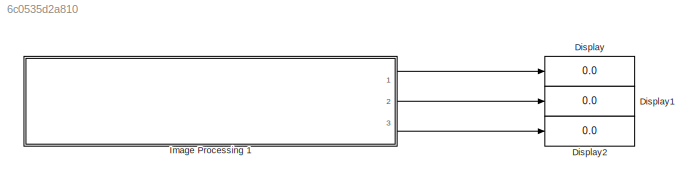
MODEL slx_6c0535d2a810
KIND model
CONFIG AbsTol = auto
CONFIG EnableMultiTasking = on
CONFIG FixedStep = auto
CONFIG MaxStep = auto
CONFIG MinStep = auto
CONFIG RelTol = 1e-3
CONFIG SampleTimeConstraint = Unconstrained
CONFIG Solver = FixedStepAuto
CONFIG SolverName = FixedStepAuto
CONFIG StartTime = 0.0
CONFIG StopTime = inf
BLOCK [Display] Display
  Decimation = 1
  Ports = [1]
BLOCK [Display] Display1
  Decimation = 1
  Ports = [1]
BLOCK [Display] Display2
  Decimation = 1
  Ports = [1]
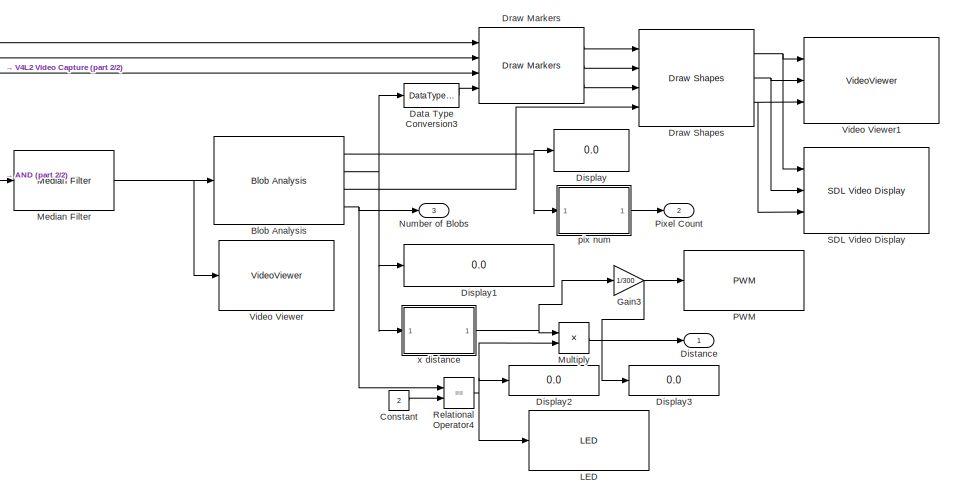
[diagram: Image Processing 1 - part 1/2, right side, full height]
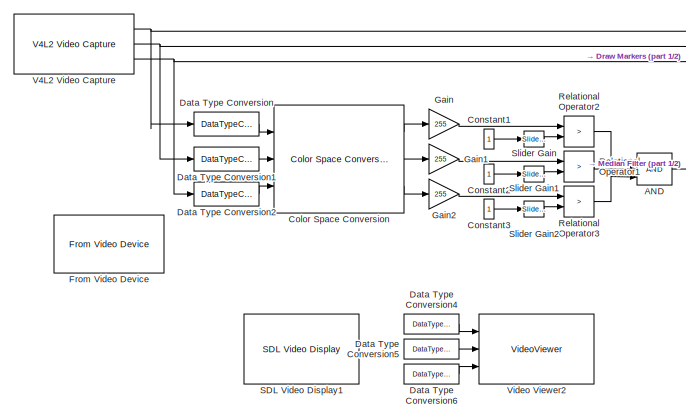
[diagram: Image Processing 1 - part 2/2, left side, full height]
BLOCK [SubSystem] Image Processing 1
  Ports = [0, 3]
  RequestExecContextInheritance = off
BLOCK [Logic] Image Processing 1/AND
  AllPortsSameDT = off
  IconShape = distinctive
  Inputs = 3
  OutDataTypeStr = boolean
  Ports = [3, 1]
BLOCK [Reference] Image Processing 1/Blob Analysis  REF=visionstatistics/Blob Analysis
  Ports = [1, 4]
  SourceBlock = visionstatistics/Blob Analysis
  SourceProductBaseCode = VP
  SourceProductName = Computer Vision System Toolbox
  SourceType = Blob Analysis
  Tag = vipblks_row_conv
BLOCK [Reference] Image Processing 1/Color Space Conversion  REF=visionconversions/Color Space
 Conversion
  Ports = [3, 3]
  SourceBlock = visionconversions/Color Space\n Conversion
  SourceProductBaseCode = VP
  SourceProductName = Computer Vision System Toolbox
  SourceType = Color Space Conversion
BLOCK [Constant] Image Processing 1/Constant
  Value = 2
BLOCK [Constant] Image Processing 1/Constant1
  OutDataTypeStr = uint8
BLOCK [Constant] Image Processing 1/Constant2
  OutDataTypeStr = uint8
BLOCK [Constant] Image Processing 1/Constant3
  OutDataTypeStr = uint8
BLOCK [DataTypeConversion] Image Processing 1/Data Type Conversion
  LockScale = on
  OutDataTypeStr = double
  RndMeth = Simplest
  SaturateOnIntegerOverflow = off
BLOCK [DataTypeConversion] Image Processing 1/Data Type Conversion1
  LockScale = on
  OutDataTypeStr = double
  RndMeth = Simplest
  SaturateOnIntegerOverflow = off
BLOCK [DataTypeConversion] Image Processing 1/Data Type Conversion2
  LockScale = on
  OutDataTypeStr = double
  RndMeth = Simplest
  SaturateOnIntegerOverflow = off
BLOCK [DataTypeConversion] Image Processing 1/Data Type Conversion3
  Commented = on
  OutDataTypeStr = uint16
  RndMeth = Floor
  SaturateOnIntegerOverflow = off
BLOCK [DataTypeConversion] Image Processing 1/Data Type Conversion4
  Commented = on
  OutDataTypeStr = uint8
  RndMeth = Floor
  SaturateOnIntegerOverflow = off
BLOCK [DataTypeConversion] Image Processing 1/Data Type Conversion5
  Commented = on
  OutDataTypeStr = uint8
  RndMeth = Floor
  SaturateOnIntegerOverflow = off
BLOCK [DataTypeConversion] Image Processing 1/Data Type Conversion6
  Commented = on
  OutDataTypeStr = uint8
  RndMeth = Floor
  SaturateOnIntegerOverflow = off
BLOCK [Display] Image Processing 1/Display
  Decimation = 1
  Ports = [1]
BLOCK [Display] Image Processing 1/Display1
  Decimation = 1
  Ports = [1]
BLOCK [Display] Image Processing 1/Display2
  Decimation = 1
  Ports = [1]
BLOCK [Display] Image Processing 1/Display3
  Decimation = 1
  Ports = [1]
BLOCK [Outport] Image Processing 1/Distance
  IconDisplay = Port number
BLOCK [Reference] Image Processing 1/Draw Markers  REF=visiontextngfix/Draw Markers
  Commented = on
  Ports = [4, 3]
  SourceBlock = visiontextngfix/Draw Markers
  SourceProductBaseCode = VP
  SourceProductName = Computer Vision System Toolbox
  SourceType = Draw Markers
BLOCK [Reference] Image Processing 1/Draw Shapes  REF=visiontextngfix/Draw Shapes
  Commented = on
  Ports = [4, 3]
  SourceBlock = visiontextngfix/Draw Shapes
  SourceProductBaseCode = VP
  SourceProductName = Computer Vision System Toolbox
  SourceType = Draw Shapes
BLOCK [Reference] Image Processing 1/From Video Device  REF=imaqlib/From Video Device
  Commented = on
  Ports = [0, 3]
  SourceBlock = imaqlib/From Video Device
  SourceProductBaseCode = IA
  SourceProductName = Image Acquisition Toolbox
  SourceType = From Video Device
  UserDataPersistent = on
BLOCK [Gain] Image Processing 1/Gain
  Gain = 255
  OutDataTypeStr = Inherit: Inherit via internal rule
  ParamDataTypeStr = Inherit: Inherit via internal rule
  SaturateOnIntegerOverflow = off
BLOCK [Gain] Image Processing 1/Gain1
  Gain = 255
  OutDataTypeStr = Inherit: Inherit via internal rule
  ParamDataTypeStr = Inherit: Inherit via internal rule
  SaturateOnIntegerOverflow = off
BLOCK [Gain] Image Processing 1/Gain2
  Gain = 255
  OutDataTypeStr = Inherit: Inherit via internal rule
  ParamDataTypeStr = Inherit: Inherit via internal rule
  SaturateOnIntegerOverflow = off
BLOCK [Gain] Image Processing 1/Gain3
  Gain = 1/300
  OutDataTypeStr = Inherit: Inherit via internal rule
  ParamDataTypeStr = Inherit: Inherit via internal rule
  SaturateOnIntegerOverflow = off
BLOCK [Reference] Image Processing 1/LED  REF=embdlinuxlib/LED
  Ports = [1]
  SourceBlock = embdlinuxlib/LED
  SourceProductBaseCode = RASPPI
  SourceProductName = Simulink Support Package for Raspberry Pi Hardware
  SourceType = LED Write
BLOCK [Reference] Image Processing 1/Median Filter  REF=visionanalysis/Median Filter
  Ports = [1, 1]
  SourceBlock = visionanalysis/Median Filter
  SourceProductBaseCode = VP
  SourceProductName = Computer Vision System Toolbox
  SourceType = Median Filter
BLOCK [Product] Image Processing 1/Multiply
  InputSameDT = off
  LockScale = on
  OutDataTypeStr = double
  Ports = [2, 1]
  RndMeth = Floor
  SaturateOnIntegerOverflow = off
BLOCK [Outport] Image Processing 1/Number of Blobs
  IconDisplay = Port number
  Port = 3
BLOCK [Reference] Image Processing 1/PWM  REF=raspberrypilib/PWM
  Ports = [1]
  SourceBlock = raspberrypilib/PWM
  SourceProductBaseCode = RASPPI
  SourceProductName = Simulink Support Package for Raspberry Pi Hardware
  SourceType = raspi.internal.PWMBlock
BLOCK [Outport] Image Processing 1/Pixel Count
  IconDisplay = Port number
  Port = 2
BLOCK [RelationalOperator] Image Processing 1/Relational Operator1
  InputSameDT = off
  Operator = >
  OutDataTypeStr = boolean
  Ports = [2, 1]
  RndMeth = Simplest
BLOCK [RelationalOperator] Image Processing 1/Relational Operator2
  InputSameDT = off
  Operator = >
  OutDataTypeStr = boolean
  Ports = [2, 1]
  RndMeth = Simplest
BLOCK [RelationalOperator] Image Processing 1/Relational Operator3
  InputSameDT = off
  Operator = >
  OutDataTypeStr = boolean
  Ports = [2, 1]
  RndMeth = Simplest
BLOCK [RelationalOperator] Image Processing 1/Relational Operator4
  InputSameDT = off
  Operator = ==
  OutDataTypeStr = boolean
  Ports = [2, 1]
  RndMeth = Simplest
BLOCK [Reference] Image Processing 1/SDL Video Display  REF=embdlinuxlib/SDL Video Display
  Commented = on
  Ports = [3]
  SourceBlock = embdlinuxlib/SDL Video Display
  SourceProductBaseCode = RASPPI
  SourceProductName = Simulink Support Package for Raspberry Pi Hardware
  SourceType = SDL Video Display
BLOCK [Reference] Image Processing 1/SDL Video Display1  REF=embdlinuxlib/SDL Video Display
  Commented = on
  Ports = [3]
  SourceBlock = embdlinuxlib/SDL Video Display
  SourceProductBaseCode = RASPPI
  SourceProductName = Simulink Support Package for Raspberry Pi Hardware
  SourceType = SDL Video Display
BLOCK [Reference] Image Processing 1/Slider Gain  REF=simulink/Math
Operations/Slider
Gain
  Ports = [1, 1]
  SourceBlock = simulink/Math\nOperations/Slider\nGain
  SourceProductBaseCode = SL
  SourceProductName = Simulink
  SourceType = Slider Gain
BLOCK [Reference] Image Processing 1/Slider Gain1  REF=simulink/Math
Operations/Slider
Gain
  Ports = [1, 1]
  SourceBlock = simulink/Math\nOperations/Slider\nGain
  SourceProductBaseCode = SL
  SourceProductName = Simulink
  SourceType = Slider Gain
BLOCK [Reference] Image Processing 1/Slider Gain2  REF=simulink/Math
Operations/Slider
Gain
  Ports = [1, 1]
  SourceBlock = simulink/Math\nOperations/Slider\nGain
  SourceProductBaseCode = SL
  SourceProductName = Simulink
  SourceType = Slider Gain
BLOCK [Reference] Image Processing 1/V4L2 Video Capture  REF=embdlinuxlib/V4L2 Video Capture
  Ports = [0, 3]
  SourceBlock = embdlinuxlib/V4L2 Video Capture
  SourceProductBaseCode = RASPPI
  SourceProductName = Simulink Support Package for Raspberry Pi Hardware
  SourceType = V4L2 Video Capture
BLOCK [VideoViewer] Image Processing 1/Video Viewer
  Commented = on
  FigPos = [561 735 732 627]
  Ports = [1]
  ScopeSpecificationString = vipscopes.VideoViewerScopeCfg('CurrentConfiguration', extmgr.ConfigurationSet(extmgr.Configuration('Core','General UI',true),extmgr.Configuration('Core','Source UI',true),extmgr.Configuration('Sources','WiredSimulink',true),extmgr.Configuration('Visuals','Video',true),extmgr.Configuration('Tools','Image Navigation Tools',true),extmgr.Configuration('Tools','Image Tool',true),extmgr.Configuration('T...<+74ch>
BLOCK [VideoViewer] Image Processing 1/Video Viewer1
  Commented = on
  FigPos = [-9 748 732 627]
  Ports = [3]
  ScopeSpecificationString = vipscopes.VideoViewerScopeCfg('CurrentConfiguration', extmgr.ConfigurationSet(extmgr.Configuration('Core','General UI',true),extmgr.Configuration('Core','Source UI',true),extmgr.Configuration('Sources','WiredSimulink',true),extmgr.Configuration('Visuals','Video',true),extmgr.Configuration('Tools','Image Navigation Tools',true),extmgr.Configuration('Tools','Image Tool',true),extmgr.Configuration('T...<+99ch>
  imagePorts = separate color signals
BLOCK [VideoViewer] Image Processing 1/Video Viewer2
  Commented = on
  FigPos = [271 744 732 627]
  Ports = [3]
  ScopeSpecificationString = vipscopes.VideoViewerScopeCfg('CurrentConfiguration', extmgr.ConfigurationSet(extmgr.Configuration('Core','General UI',true),extmgr.Configuration('Core','Source UI',true),extmgr.Configuration('Sources','WiredSimulink',true),extmgr.Configuration('Visuals','Video',true),extmgr.Configuration('Tools','Image Navigation Tools',true),extmgr.Configuration('Tools','Image Tool',true),extmgr.Configuration('T...<+74ch>
  imagePorts = separate color signals
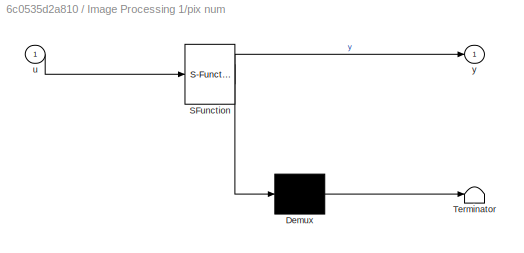
BLOCK [SubSystem] Image Processing 1/pix num
  ErrorFcn = Stateflow.Translate.translate
  PermitHierarchicalResolution = ExplicitOnly
  Ports = [1, 1]
  RequestExecContextInheritance = off
  SFBlockType = MATLAB Function
  TreatAsAtomicUnit = on
BLOCK [Demux] Image Processing 1/pix num/ Demux 
  Outputs = 1
  Ports = [1, 1]
BLOCK [S-Function] Image Processing 1/pix num/ SFunction 
  EnableBusSupport = on
  FunctionName = sf_sfun
  PortCounts = [1 2]
  Ports = [1, 2]
  SFcnIsStateOwnerBlock = off
  SFunctionDeploymentMode = off
  Tag = Stateflow S-Function vidcap_LED 1
BLOCK [Terminator] Image Processing 1/pix num/ Terminator 
BLOCK [Inport] Image Processing 1/pix num/u
  IconDisplay = Port number
BLOCK [Outport] Image Processing 1/pix num/y
  IconDisplay = Port number
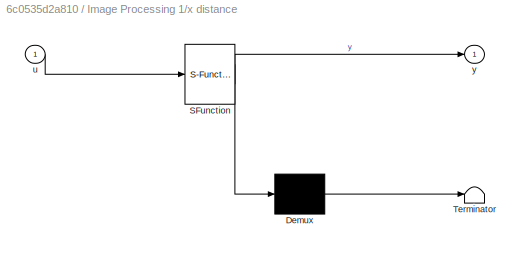
BLOCK [SubSystem] Image Processing 1/x distance
  ErrorFcn = Stateflow.Translate.translate
  PermitHierarchicalResolution = ExplicitOnly
  Ports = [1, 1]
  RequestExecContextInheritance = off
  SFBlockType = MATLAB Function
  TreatAsAtomicUnit = on
BLOCK [Demux] Image Processing 1/x distance/ Demux 
  Outputs = 1
  Ports = [1, 1]
BLOCK [S-Function] Image Processing 1/x distance/ SFunction 
  EnableBusSupport = on
  FunctionName = sf_sfun
  PortCounts = [1 2]
  Ports = [1, 2]
  SFcnIsStateOwnerBlock = off
  SFunctionDeploymentMode = off
  Tag = Stateflow S-Function vidcap_LED 2
BLOCK [Terminator] Image Processing 1/x distance/ Terminator 
BLOCK [Inport] Image Processing 1/x distance/u
  IconDisplay = Port number
BLOCK [Outport] Image Processing 1/x distance/y
  IconDisplay = Port number
LINE Image Processing 1/AND:1 -> Image Processing 1/Median Filter:1
NET Image Processing 1/Blob Analysis:1 -> Image Processing 1/Display:1, Image Processing 1/pix num:1
NET Image Processing 1/Blob Analysis:2 -> Image Processing 1/Data Type Conversion3:1, Image Processing 1/Display1:1, Image Processing 1/x distance:1
LINE Image Processing 1/Blob Analysis:3 -> Image Processing 1/Draw Shapes:4
NET Image Processing 1/Blob Analysis:4 -> Image Processing 1/Number of Blobs:1, Image Processing 1/Relational Operator4:1
LINE Image Processing 1/Color Space Conversion:1 -> Image Processing 1/Gain:1
LINE Image Processing 1/Color Space Conversion:2 -> Image Processing 1/Gain1:1
LINE Image Processing 1/Color Space Conversion:3 -> Image Processing 1/Gain2:1
LINE Image Processing 1/Constant1:1 -> Image Processing 1/Slider Gain:1
LINE Image Processing 1/Constant2:1 -> Image Processing 1/Slider Gain1:1
LINE Image Processing 1/Constant3:1 -> Image Processing 1/Slider Gain2:1
LINE Image Processing 1/Constant:1 -> Image Processing 1/Relational Operator4:2
LINE Image Processing 1/Data Type Conversion1:1 -> Image Processing 1/Color Space Conversion:2
LINE Image Processing 1/Data Type Conversion2:1 -> Image Processing 1/Color Space Conversion:3
LINE Image Processing 1/Data Type Conversion3:1 -> Image Processing 1/Draw Markers:4
LINE Image Processing 1/Data Type Conversion4:1 -> Image Processing 1/Video Viewer2:1
LINE Image Processing 1/Data Type Conversion5:1 -> Image Processing 1/Video Viewer2:2
LINE Image Processing 1/Data Type Conversion6:1 -> Image Processing 1/Video Viewer2:3
LINE Image Processing 1/Data Type Conversion:1 -> Image Processing 1/Color Space Conversion:1
LINE Image Processing 1/Draw Markers:1 -> Image Processing 1/Draw Shapes:1
LINE Image Processing 1/Draw Markers:2 -> Image Processing 1/Draw Shapes:2
LINE Image Processing 1/Draw Markers:3 -> Image Processing 1/Draw Shapes:3
NET Image Processing 1/Draw Shapes:1 -> Image Processing 1/SDL Video Display:1, Image Processing 1/Video Viewer1:1
NET Image Processing 1/Draw Shapes:2 -> Image Processing 1/SDL Video Display:2, Image Processing 1/Video Viewer1:2
NET Image Processing 1/Draw Shapes:3 -> Image Processing 1/SDL Video Display:3, Image Processing 1/Video Viewer1:3
LINE Image Processing 1/Gain1:1 -> Image Processing 1/Relational Operator1:1
LINE Image Processing 1/Gain2:1 -> Image Processing 1/Relational Operator3:1
NET Image Processing 1/Gain3:1 -> Image Processing 1/Display3:1, Image Processing 1/PWM:1
LINE Image Processing 1/Gain:1 -> Image Processing 1/Relational Operator2:1
NET Image Processing 1/Median Filter:1 -> Image Processing 1/Blob Analysis:1, Image Processing 1/Video Viewer:1
LINE Image Processing 1/Multiply:1 -> Image Processing 1/Distance:1
LINE Image Processing 1/Relational Operator1:1 -> Image Processing 1/AND:2
LINE Image Processing 1/Relational Operator2:1 -> Image Processing 1/AND:1
LINE Image Processing 1/Relational Operator3:1 -> Image Processing 1/AND:3
NET Image Processing 1/Relational Operator4:1 -> Image Processing 1/Display2:1, Image Processing 1/LED:1, Image Processing 1/Multiply:2
LINE Image Processing 1/Slider Gain1:1 -> Image Processing 1/Relational Operator1:2
LINE Image Processing 1/Slider Gain2:1 -> Image Processing 1/Relational Operator3:2
LINE Image Processing 1/Slider Gain:1 -> Image Processing 1/Relational Operator2:2
NET Image Processing 1/V4L2 Video Capture:1 -> Image Processing 1/Data Type Conversion:1, Image Processing 1/Draw Markers:1
NET Image Processing 1/V4L2 Video Capture:2 -> Image Processing 1/Data Type Conversion1:1, Image Processing 1/Draw Markers:2
NET Image Processing 1/V4L2 Video Capture:3 -> Image Processing 1/Data Type Conversion2:1, Image Processing 1/Draw Markers:3
LINE Image Processing 1/pix num:1 -> Image Processing 1/Pixel Count:1
NET Image Processing 1/x distance:1 -> Image Processing 1/Gain3:1, Image Processing 1/Multiply:1
LINE Image Processing 1:1 -> Display:1
LINE Image Processing 1:2 -> Display1:1
LINE Image Processing 1:3 -> Display2:1
note: NET lines group one-source signal fan-out (src -> all destinations, sorted); 1:1 wires keep LINE
CHART Image Processing
1/pix num states=1 transitions=1
  STATE_LABEL 'eML_blk_kernel()'
  STATE_LABEL 'SCRIPT:\nfunction y = area(u)\n\ny = u(1) + u(2);'
CHART Image Processing
1/x distance states=1 transitions=1
  STATE_LABEL 'eML_blk_kernel()'
  STATE_LABEL 'SCRIPT:\nfunction y = dist(u)\n\ny = abs(u(2,1) - u(1,1));'
